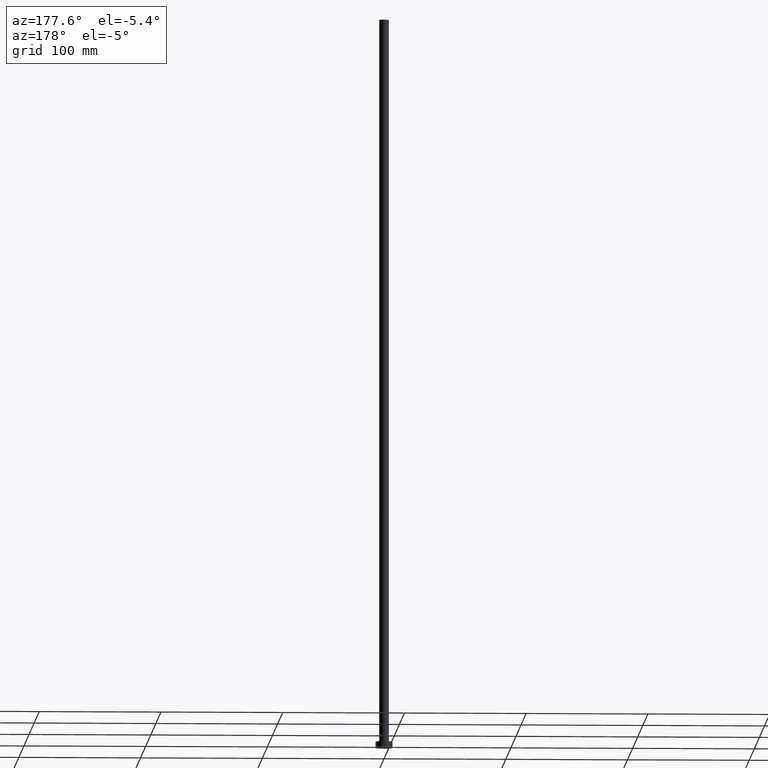
[diagram: clean part render]
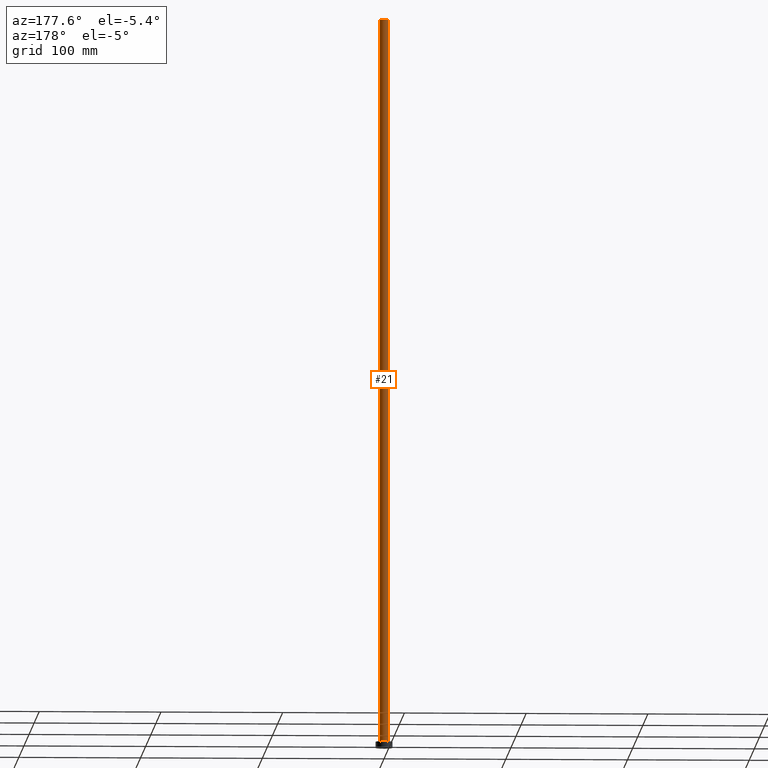
[diagram: same view with one face highlighted and labeled with its STEP entity id]
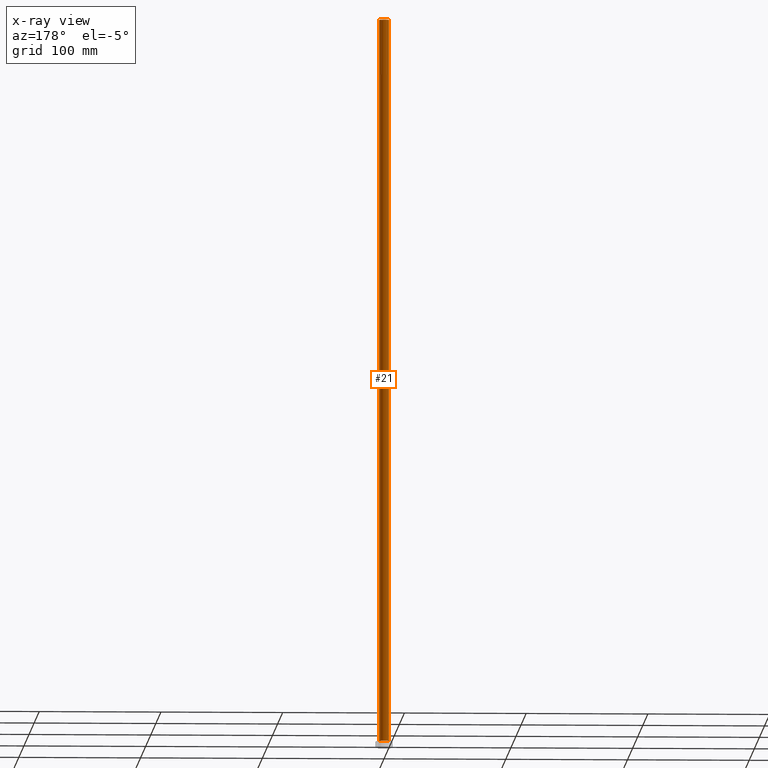
[diagram: x-ray of the same camera — body ghosted, the highlighted face saturated]
A machine part, auxiliary view. The second image highlights one B-rep face of the part: STEP entity #21.
The next image is the same camera in x-ray: the body ghosted, the highlighted face saturated — about 0% of this face is hidden behind the body in this view.
In plain terms, the highlighted cylindrical surface (edge-blend (fillet) strip) has radius 4 mm, axis along (-0, -0, -1).
Its self-contained STEP definition (entity closure, byte-faithful):
#9 = DIRECTION ( 'NONE',  ( -0.000000000000000000, -0.000000000000000000, -1.000000000000000000 ) ) ;
#16 = EDGE_CURVE ( 'NONE', #360, #285, #201, .T. ) ;
#21 = ADVANCED_FACE ( 'NONE', ( #145 ), #214, .T. ) ;
#26 = CARTESIAN_POINT ( 'NONE',  ( 4.000000000000000000, 4.898587196589412829E-16, 5.499999999999949374 ) ) ;
#36 = DIRECTION ( 'NONE',  ( -0.000000000000000000, -0.000000000000000000, -1.000000000000000000 ) ) ;
#41 = EDGE_CURVE ( 'NONE', #360, #411, #69, .T. ) ;
#47 = LINE ( 'NONE', #185, #325 ) ;
#68 = DIRECTION ( 'NONE',  ( 1.000000000000000000, 0.000000000000000000, 0.000000000000000000 ) ) ;
#69 = LINE ( 'NONE', #344, #268 ) ;
#82 = CARTESIAN_POINT ( 'NONE',  ( 0.000000000000000000, 0.000000000000000000, 600.0000000000000000 ) ) ;
#129 = EDGE_CURVE ( 'NONE', #285, #448, #47, .T. ) ;
#133 = CARTESIAN_POINT ( 'NONE',  ( 0.000000000000000000, 0.000000000000000000, 600.0000000000000000 ) ) ;
#145 = FACE_OUTER_BOUND ( 'NONE', #422, .T. ) ;
#161 = CIRCLE ( 'NONE', #299, 4.000000000000000000 ) ;
#166 = ORIENTED_EDGE ( 'NONE', *, *, #314, .T. ) ;
#174 = DIRECTION ( 'NONE',  ( -0.000000000000000000, -0.000000000000000000, -1.000000000000000000 ) ) ;
#185 = CARTESIAN_POINT ( 'NONE',  ( -4.000000000000000000, 0.000000000000000000, 600.0000000000000000 ) ) ;
#186 = AXIS2_PLACEMENT_3D ( 'NONE', #82, #277, #68 ) ;
#201 = CIRCLE ( 'NONE', #186, 4.000000000000000000 ) ;
#214 = CYLINDRICAL_SURFACE ( 'NONE', #455, 4.000000000000000000 ) ;
#218 = DIRECTION ( 'NONE',  ( 0.000000000000000000, 0.000000000000000000, 1.000000000000000000 ) ) ;
#223 = DIRECTION ( 'NONE',  ( 1.000000000000000000, 0.000000000000000000, 0.000000000000000000 ) ) ;
#234 = CARTESIAN_POINT ( 'NONE',  ( -4.000000000000000000, 0.000000000000000000, 600.0000000000000000 ) ) ;
#242 = CARTESIAN_POINT ( 'NONE',  ( -4.000000000000000000, 0.000000000000000000, 5.499999999999949374 ) ) ;
#243 = ORIENTED_EDGE ( 'NONE', *, *, #16, .F. ) ;
#258 = CARTESIAN_POINT ( 'NONE',  ( 0.000000000000000000, 0.000000000000000000, 5.499999999999949374 ) ) ;
#268 = VECTOR ( 'NONE', #36, 1000.000000000000000 ) ;
#271 = ORIENTED_EDGE ( 'NONE', *, *, #41, .T. ) ;
#277 = DIRECTION ( 'NONE',  ( 0.000000000000000000, 0.000000000000000000, 1.000000000000000000 ) ) ;
#285 = VERTEX_POINT ( 'NONE', #234 ) ;
#290 = DIRECTION ( 'NONE',  ( -1.000000000000000000, 0.000000000000000000, 0.000000000000000000 ) ) ;
#299 = AXIS2_PLACEMENT_3D ( 'NONE', #258, #218, #223 ) ;
#314 = EDGE_CURVE ( 'NONE', #411, #448, #161, .T. ) ;
#325 = VECTOR ( 'NONE', #9, 1000.000000000000000 ) ;
#344 = CARTESIAN_POINT ( 'NONE',  ( 4.000000000000000000, 4.898587196589412829E-16, 600.0000000000000000 ) ) ;
#360 = VERTEX_POINT ( 'NONE', #403 ) ;
#403 = CARTESIAN_POINT ( 'NONE',  ( 4.000000000000000000, 4.898587196589412829E-16, 600.0000000000000000 ) ) ;
#411 = VERTEX_POINT ( 'NONE', #26 ) ;
#422 = EDGE_LOOP ( 'NONE', ( #243, #271, #166, #446 ) ) ;
#446 = ORIENTED_EDGE ( 'NONE', *, *, #129, .F. ) ;
#448 = VERTEX_POINT ( 'NONE', #242 ) ;
#455 = AXIS2_PLACEMENT_3D ( 'NONE', #133, #174, #290 ) ;